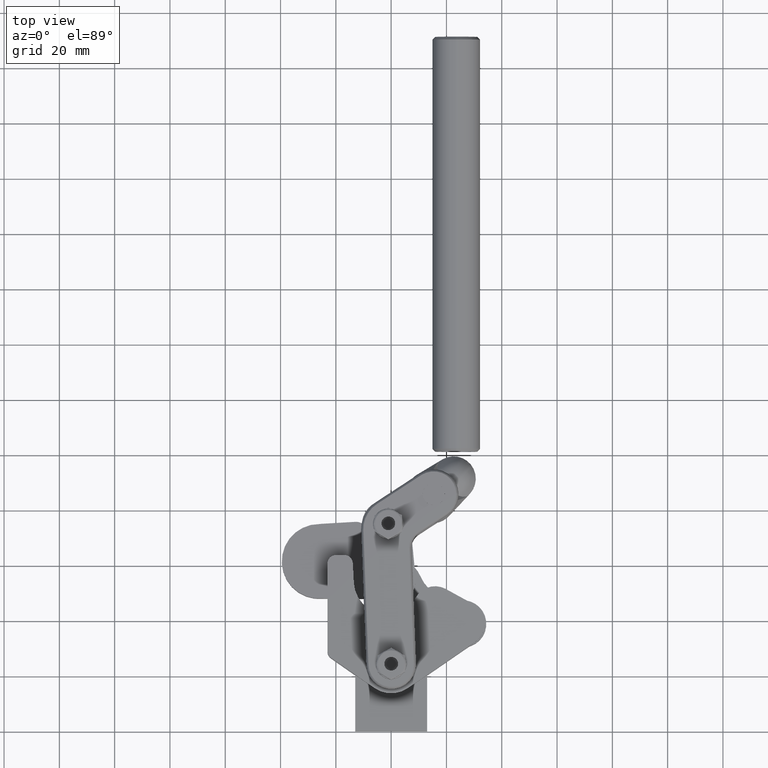
[diagram: clean part render]
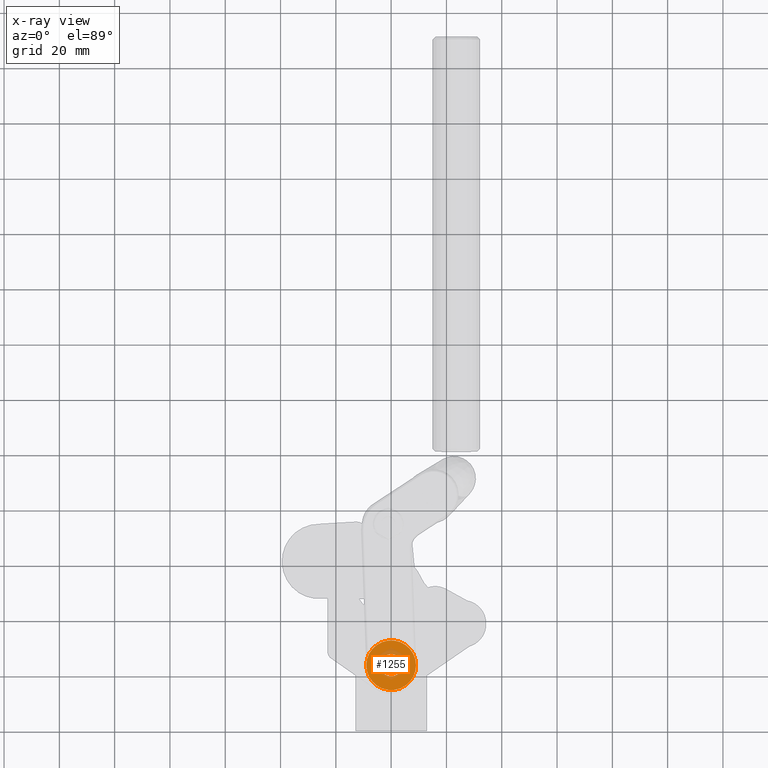
[diagram: x-ray — body ghosted, one internal face saturated and labeled with its STEP entity id]
A machine part, top view, then the same camera in x-ray: the body is ghosted and one INTERNAL B-rep face — a face not visible from any outside direction — is saturated and labeled: STEP entity #1255.
In plain terms, the highlighted planar face has unit normal (0, 0, 1).
Its self-contained STEP definition (entity closure, byte-faithful):
#117 = DIRECTION ( 'NONE',  ( 0.0000000000000000000, 0.0000000000000000000, 1.000000000000000000 ) ) ;
#261 = CARTESIAN_POINT ( 'NONE',  ( 3.999999999999998200, 24.00000000000001100, -9.699999999999999300 ) ) ;
#397 = AXIS2_PLACEMENT_3D ( 'NONE', #13453, #12819, #6627 ) ;
#1255 = ADVANCED_FACE ( 'NONE', ( #9484, #3470 ), #4581, .F. ) ;
#1287 = EDGE_CURVE ( 'NONE', #6714, #11183, #10639, .T. ) ;
#1928 = ORIENTED_EDGE ( 'NONE', *, *, #2385, .F. ) ;
#1963 = EDGE_LOOP ( 'NONE', ( #1928, #5691 ) ) ;
#2008 = EDGE_CURVE ( 'NONE', #11183, #6714, #12229, .T. ) ;
#2096 = DIRECTION ( 'NONE',  ( 0.0000000000000000000, 0.0000000000000000000, 1.000000000000000000 ) ) ;
#2181 = CARTESIAN_POINT ( 'NONE',  ( 8.999999999999998200, 24.00000000000001100, -9.699999999999999300 ) ) ;
#2385 = EDGE_CURVE ( 'NONE', #5902, #6012, #6926, .T. ) ;
#3470 = FACE_OUTER_BOUND ( 'NONE', #1963, .T. ) ;
#3473 = CARTESIAN_POINT ( 'NONE',  ( -1.301042606982605300E-015, 24.00000000000001100, -9.699999999999999300 ) ) ;
#3480 = CARTESIAN_POINT ( 'NONE',  ( -1.301042606982605300E-015, 24.00000000000001100, -9.699999999999999300 ) ) ;
#3815 = CIRCLE ( 'NONE', #5022, 9.000000000000000000 ) ;
#4238 = ORIENTED_EDGE ( 'NONE', *, *, #1287, .T. ) ;
#4546 = DIRECTION ( 'NONE',  ( 1.000000000000000000, 0.0000000000000000000, 0.0000000000000000000 ) ) ;
#4581 = PLANE ( 'NONE',  #13426 ) ;
#5022 = AXIS2_PLACEMENT_3D ( 'NONE', #6447, #117, #7507 ) ;
#5260 = DIRECTION ( 'NONE',  ( 1.000000000000000000, 0.0000000000000000000, 0.0000000000000000000 ) ) ;
#5691 = ORIENTED_EDGE ( 'NONE', *, *, #7229, .F. ) ;
#5902 = VERTEX_POINT ( 'NONE', #13585 ) ;
#6012 = VERTEX_POINT ( 'NONE', #2181 ) ;
#6447 = CARTESIAN_POINT ( 'NONE',  ( -1.301042606982605300E-015, 24.00000000000001100, -9.699999999999999300 ) ) ;
#6627 = DIRECTION ( 'NONE',  ( 1.000000000000000000, 0.0000000000000000000, 0.0000000000000000000 ) ) ;
#6714 = VERTEX_POINT ( 'NONE', #261 ) ;
#6869 = AXIS2_PLACEMENT_3D ( 'NONE', #3473, #10913, #4546 ) ;
#6926 = CIRCLE ( 'NONE', #6869, 9.000000000000000000 ) ;
#7229 = EDGE_CURVE ( 'NONE', #6012, #5902, #3815, .T. ) ;
#7338 = EDGE_LOOP ( 'NONE', ( #9691, #4238 ) ) ;
#7507 = DIRECTION ( 'NONE',  ( 1.000000000000000000, 0.0000000000000000000, 0.0000000000000000000 ) ) ;
#9484 = FACE_BOUND ( 'NONE', #7338, .T. ) ;
#9691 = ORIENTED_EDGE ( 'NONE', *, *, #2008, .T. ) ;
#10293 = CARTESIAN_POINT ( 'NONE',  ( -4.000000000000001800, 24.00000000000001100, -9.699999999999999300 ) ) ;
#10339 = DIRECTION ( 'NONE',  ( 0.0000000000000000000, 0.0000000000000000000, 1.000000000000000000 ) ) ;
#10639 = CIRCLE ( 'NONE', #397, 4.000000000000000000 ) ;
#10913 = DIRECTION ( 'NONE',  ( 0.0000000000000000000, 0.0000000000000000000, 1.000000000000000000 ) ) ;
#11183 = VERTEX_POINT ( 'NONE', #10293 ) ;
#11922 = CARTESIAN_POINT ( 'NONE',  ( -1.301042606982605300E-015, 24.00000000000001100, -9.699999999999999300 ) ) ;
#12115 = DIRECTION ( 'NONE',  ( 1.000000000000000000, 0.0000000000000000000, -0.0000000000000000000 ) ) ;
#12229 = CIRCLE ( 'NONE', #12370, 4.000000000000000000 ) ;
#12370 = AXIS2_PLACEMENT_3D ( 'NONE', #11922, #2096, #5260 ) ;
#12819 = DIRECTION ( 'NONE',  ( 0.0000000000000000000, 0.0000000000000000000, 1.000000000000000000 ) ) ;
#13426 = AXIS2_PLACEMENT_3D ( 'NONE', #3480, #10339, #12115 ) ;
#13453 = CARTESIAN_POINT ( 'NONE',  ( -1.301042606982605300E-015, 24.00000000000001100, -9.699999999999999300 ) ) ;
#13585 = CARTESIAN_POINT ( 'NONE',  ( -9.000000000000001800, 24.00000000000001100, -9.699999999999999300 ) ) ;